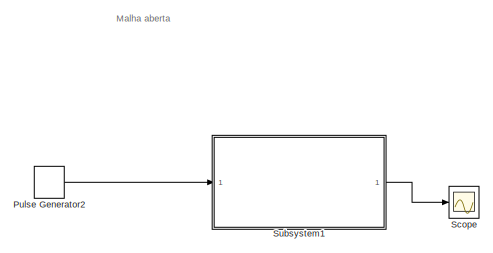
[diagram: root canvas - part 1/6, top left region]
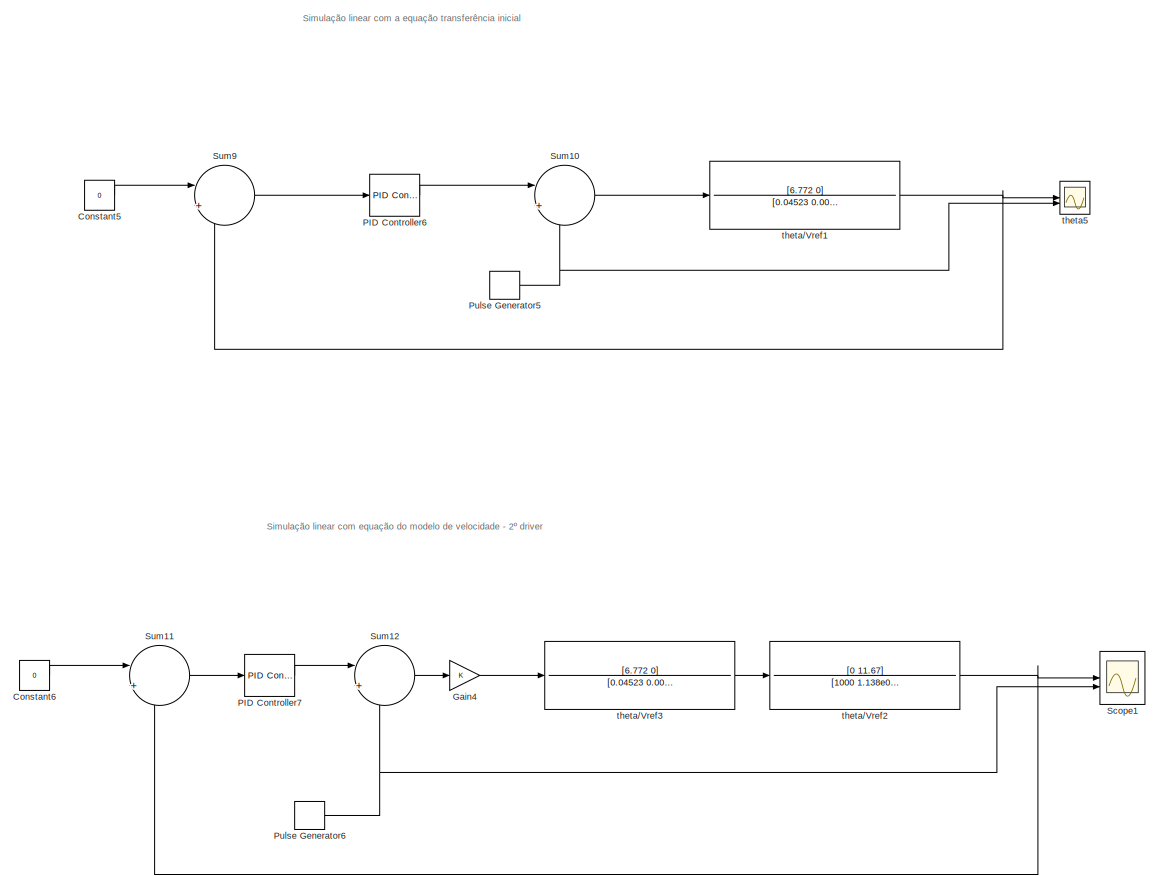
[diagram: root canvas - part 2/6, top center region]
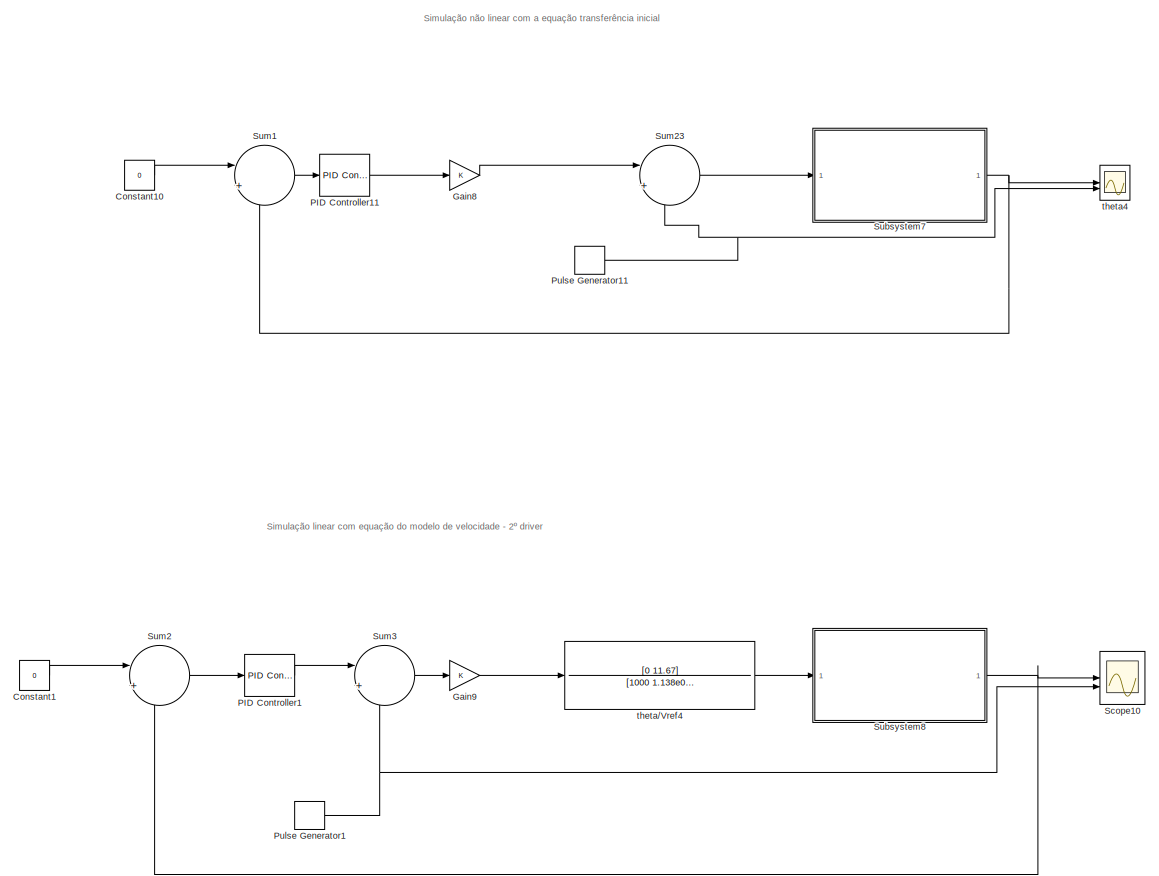
[diagram: root canvas - part 3/6, top right region]
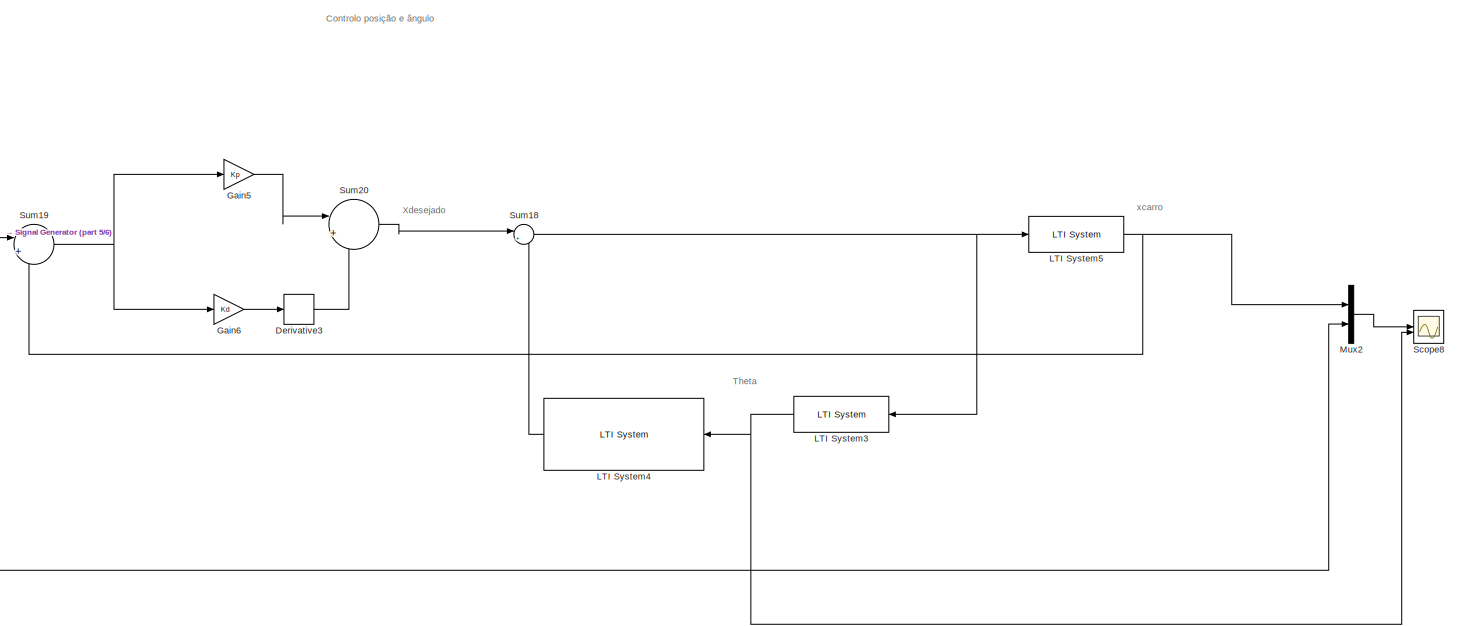
[diagram: root canvas - part 4/6, middle right region]
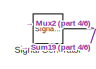
[diagram: root canvas - part 5/6, central region]
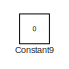
[diagram: root canvas - part 6/6, bottom left region]
MODEL slx_164c62c2c258
KIND model
CONFIG AbsTol = 1e-3
CONFIG EnableMultiTasking = off
CONFIG FixedStep = 0.001
CONFIG MaxStep = 0.001
CONFIG MinStep = auto
CONFIG RelTol = 1e-3
CONFIG SampleTimeConstraint = Unconstrained
CONFIG SolverName = ode14x
CONFIG StartTime = 0.0
CONFIG StopTime = 100
BLOCK [Constant] Constant1
  Commented = on
  Value = 0
BLOCK [Constant] Constant10
  Value = 0
BLOCK [Constant] Constant5
  Commented = on
  Value = 0
BLOCK [Constant] Constant6
  Commented = on
  Value = 0
BLOCK [Constant] Constant9
  Commented = on
  Value = 0
BLOCK [Derivative] Derivative3
BLOCK [Gain] Gain4
  Commented = on
BLOCK [Gain] Gain5
  Gain = Kp
BLOCK [Gain] Gain6
  Gain = Kd
BLOCK [Gain] Gain8
BLOCK [Gain] Gain9
  Commented = on
BLOCK [Reference] LTI System3  REF=cstblocks/LTI System
  NameLocation = top
  SourceBlock = cstblocks/LTI System
  SourceType = LTI Block
BLOCK [Reference] LTI System4  REF=cstblocks/LTI System
  NameLocation = top
  SourceBlock = cstblocks/LTI System
  SourceType = LTI Block
BLOCK [Reference] LTI System5  REF=cstblocks/LTI System
  SourceBlock = cstblocks/LTI System
  SourceType = LTI Block
BLOCK [Mux] Mux2
  DisplayOption = bar
  Inputs = 2
BLOCK [Reference] PID Controller1  REF=slpidlib/PID Controller
  Commented = on
  LibrarySourceBlock = simulink/Continuous/PID Controller
  SourceBlock = slpidlib/PID Controller
  SourceType = PID 1dof
BLOCK [Reference] PID Controller11  REF=slpidlib/PID Controller
  LibrarySourceBlock = simulink/Continuous/PID Controller
  SourceBlock = slpidlib/PID Controller
  SourceType = PID 1dof
BLOCK [Reference] PID Controller6  REF=slpidlib/PID Controller
  Commented = on
  LibrarySourceBlock = simulink/Continuous/PID Controller
  SourceBlock = slpidlib/PID Controller
  SourceType = PID 1dof
BLOCK [Reference] PID Controller7  REF=slpidlib/PID Controller
  Commented = on
  LibrarySourceBlock = simulink/Continuous/PID Controller
  SourceBlock = slpidlib/PID Controller
  SourceType = PID 1dof
BLOCK [DiscretePulseGenerator] Pulse Generator1
  Amplitude = 0.1
  Commented = on
  Period = 10
  PulseType = Time based
BLOCK [DiscretePulseGenerator] Pulse Generator11
  Amplitude = 0.1
  Period = 10
  PulseType = Time based
BLOCK [DiscretePulseGenerator] Pulse Generator2
  Amplitude = 0.1
  Commented = on
  Period = 20
  PulseType = Time based
BLOCK [DiscretePulseGenerator] Pulse Generator5
  Amplitude = 0.1
  Commented = on
  PulseType = Time based
BLOCK [DiscretePulseGenerator] Pulse Generator6
  Amplitude = 0.1
  Commented = on
  Period = 10
  PulseType = Time based
BLOCK [Scope] Scope
  Commented = on
  Floating = off
  NumInputPorts = 1
  ScopeSpecificationString = Simulink.scopes.TimeScopeBlockCfg('CurrentConfiguration', extmgr.ConfigurationSet(extmgr.Configuration('Core','General UI',true),extmgr.Configuration('Core','Source UI',true),extmgr.Configuration('Sources','WiredSimulink',true,'DataLoggingVariableName','ScopeData1'),extmgr.Configuration('Visuals','Time Domain',true,'SerializedDisplays',{struct('MinYLimReal','-0.71976','MaxYLimReal','6.47786','YLab...<+1398ch>
BLOCK [Scope] Scope1
  Commented = on
  Floating = off
  NumInputPorts = 2
  ScopeSpecificationString = Simulink.scopes.TimeScopeBlockCfg('CurrentConfiguration', extmgr.ConfigurationSet(extmgr.Configuration('Core','General UI',true),extmgr.Configuration('Core','Source UI',true),extmgr.Configuration('Sources','WiredSimulink',true,'DataLoggingVariableName','ScopeData2'),extmgr.Configuration('Visuals','Time Domain',true,'SerializedDisplays',{struct('MinYLimReal','-0.00018','MaxYLimReal','0.00028','YLab...<+2021ch>
BLOCK [Scope] Scope10
  Commented = on
  Floating = off
  NumInputPorts = 2
  ScopeSpecificationString = Simulink.scopes.TimeScopeBlockCfg('CurrentConfiguration', extmgr.ConfigurationSet(extmgr.Configuration('Core','General UI',true),extmgr.Configuration('Core','Source UI',true),extmgr.Configuration('Sources','WiredSimulink',true,'DataLoggingVariableName','ScopeData2'),extmgr.Configuration('Visuals','Time Domain',true,'SerializedDisplays',{struct('MinYLimReal','-0.00018','MaxYLimReal','0.00029','YLab...<+2020ch>
BLOCK [Scope] Scope8
  Floating = off
  NumInputPorts = 2
  ScopeSpecificationString = Simulink.scopes.TimeScopeBlockCfg('CurrentConfiguration', extmgr.ConfigurationSet(extmgr.Configuration('Core','General UI',true),extmgr.Configuration('Core','Source UI',true),extmgr.Configuration('Sources','WiredSimulink',true,'DataLoggingVariableName','ScopeData1'),extmgr.Configuration('Visuals','Time Domain',true,'SerializedDisplays',{struct('MinYLimReal','-0.01263','MaxYLimReal','0.01263','YLab...<+2125ch>
BLOCK [SignalGenerator] Signal Generator
  Amplitude = 0.01
  Frequency = 0.04
  WaveForm = square
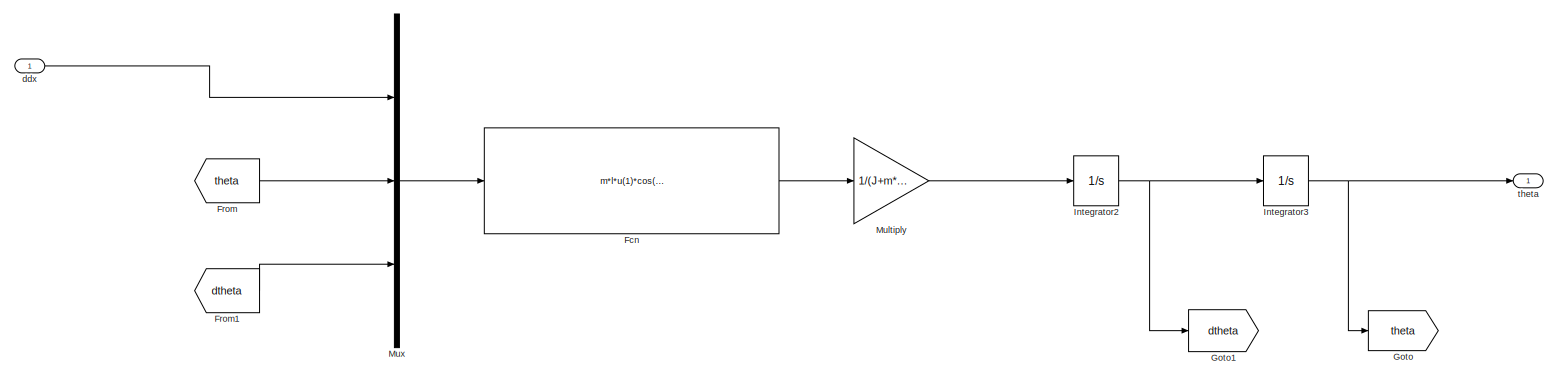
[diagram: Subsystem1 - part 1/1, most of the canvas]
BLOCK [SubSystem] Subsystem1
  Commented = on
BLOCK [Fcn] Subsystem1/Fcn
  Expr = m*l*u(1)*cos(u(2)) + m*l*g*sin(u(2)) - c*u(3)
BLOCK [From] Subsystem1/From
  GotoTag = theta
BLOCK [From] Subsystem1/From1
  GotoTag = dtheta
BLOCK [Goto] Subsystem1/Goto
  GotoTag = theta
BLOCK [Goto] Subsystem1/Goto1
  GotoTag = dtheta
BLOCK [Integrator] Subsystem1/Integrator2
BLOCK [Integrator] Subsystem1/Integrator3
BLOCK [Gain] Subsystem1/Multiply
  Gain = 1/(J+m*l^2)
BLOCK [Mux] Subsystem1/Mux
  DisplayOption = bar
  Inputs = 3
BLOCK [Inport] Subsystem1/ddx
BLOCK [Outport] Subsystem1/theta
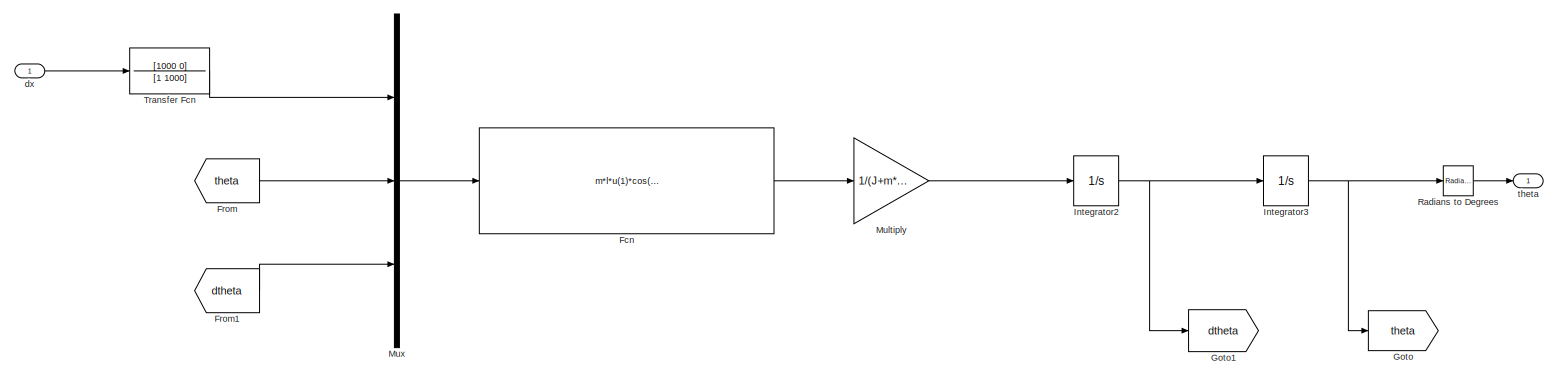
[diagram: Subsystem7 - part 1/1, most of the canvas]
BLOCK [SubSystem] Subsystem7
BLOCK [Fcn] Subsystem7/Fcn
  Expr = m*l*u(1)*cos(u(2)) + m*l*g*sin(u(2)) - c*u(3)
BLOCK [From] Subsystem7/From
  GotoTag = theta
BLOCK [From] Subsystem7/From1
  GotoTag = dtheta
BLOCK [Goto] Subsystem7/Goto
  GotoTag = theta
BLOCK [Goto] Subsystem7/Goto1
  GotoTag = dtheta
BLOCK [Integrator] Subsystem7/Integrator2
BLOCK [Integrator] Subsystem7/Integrator3
BLOCK [Gain] Subsystem7/Multiply
  Gain = 1/(J+m*l^2)
BLOCK [Mux] Subsystem7/Mux
  DisplayOption = bar
  Inputs = 3
BLOCK [Reference] Subsystem7/Radians to Degrees  REF=simulink_extras/Transformations/Radians
to Degrees
  SourceBlock = simulink_extras/Transformations/Radians\nto Degrees
  SourceType = RadiansToDegrees
BLOCK [TransferFcn] Subsystem7/Transfer Fcn
  Denominator = [1 1000]
  Numerator = [1000 0]
BLOCK [Inport] Subsystem7/dx
BLOCK [Outport] Subsystem7/theta
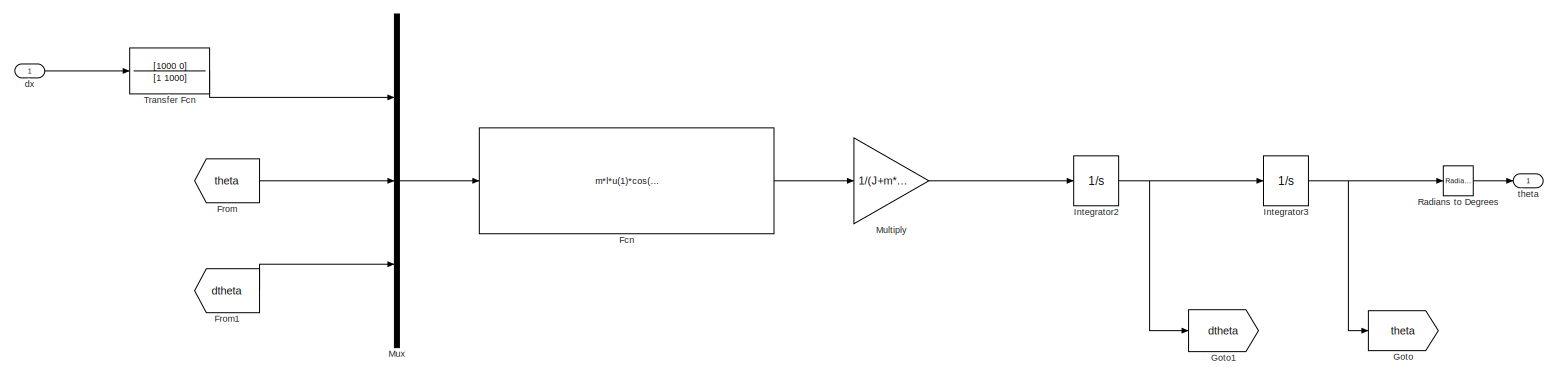
[diagram: Subsystem8 - part 1/1, most of the canvas]
BLOCK [SubSystem] Subsystem8
  Commented = on
BLOCK [Fcn] Subsystem8/Fcn
  Expr = m*l*u(1)*cos(u(2)) + m*l*g*sin(u(2)) - c*u(3)
BLOCK [From] Subsystem8/From
  GotoTag = theta
BLOCK [From] Subsystem8/From1
  GotoTag = dtheta
BLOCK [Goto] Subsystem8/Goto
  GotoTag = theta
BLOCK [Goto] Subsystem8/Goto1
  GotoTag = dtheta
BLOCK [Integrator] Subsystem8/Integrator2
BLOCK [Integrator] Subsystem8/Integrator3
BLOCK [Gain] Subsystem8/Multiply
  Gain = 1/(J+m*l^2)
BLOCK [Mux] Subsystem8/Mux
  DisplayOption = bar
  Inputs = 3
BLOCK [Reference] Subsystem8/Radians to Degrees  REF=simulink_extras/Transformations/Radians
to Degrees
  SourceBlock = simulink_extras/Transformations/Radians\nto Degrees
  SourceType = RadiansToDegrees
BLOCK [TransferFcn] Subsystem8/Transfer Fcn
  Denominator = [1 1000]
  Numerator = [1000 0]
BLOCK [Inport] Subsystem8/dx
BLOCK [Outport] Subsystem8/theta
BLOCK [Sum] Sum1
  Inputs = |+-
BLOCK [Sum] Sum10
  Commented = on
  Inputs = |++
BLOCK [Sum] Sum11
  Commented = on
  Inputs = |+-
BLOCK [Sum] Sum12
  Commented = on
  Inputs = |++
BLOCK [Sum] Sum18
  Inputs = |+-
BLOCK [Sum] Sum19
  Inputs = |+-
BLOCK [Sum] Sum2
  Commented = on
  Inputs = |+-
BLOCK [Sum] Sum20
  Inputs = |++
BLOCK [Sum] Sum23
  Inputs = |++
BLOCK [Sum] Sum3
  Commented = on
  Inputs = |++
BLOCK [Sum] Sum9
  Commented = on
  Inputs = |+-
BLOCK [TransferFcn] theta//Vref1
  Commented = on
  Denominator = [0.04523 0.008308 -1.158]
  Numerator = [6.772 0]
BLOCK [TransferFcn] theta//Vref2
  Commented = on
  Denominator = [1000 1.138e04 126.2]
  Numerator = [0 11.67]
BLOCK [TransferFcn] theta//Vref3
  Commented = on
  Denominator = [0.04523 0.008308 -1.158]
  Numerator = [6.772 0]
BLOCK [TransferFcn] theta//Vref4
  Commented = on
  Denominator = [1000 1.138e04 126.2]
  Numerator = [0 11.67]
BLOCK [Scope] theta4
  Floating = off
  NumInputPorts = 2
  ScopeSpecificationString = Simulink.scopes.TimeScopeBlockCfg('CurrentConfiguration', extmgr.ConfigurationSet(extmgr.Configuration('Core','General UI',true),extmgr.Configuration('Core','Source UI',true),extmgr.Configuration('Sources','WiredSimulink',true,'DataLoggingVariableName','ScopeData1'),extmgr.Configuration('Visuals','Time Domain',true,'SerializedDisplays',{struct('MinYLimReal','-0.01995','MaxYLimReal','0.06071','YLab...<+2074ch>
BLOCK [Scope] theta5
  Commented = on
  Floating = off
  NumInputPorts = 2
  ScopeSpecificationString = Simulink.scopes.TimeScopeBlockCfg('CurrentConfiguration', extmgr.ConfigurationSet(extmgr.Configuration('Core','General UI',true),extmgr.Configuration('Core','Source UI',true),extmgr.Configuration('Sources','WiredSimulink',true,'DataLoggingVariableName','ScopeData1'),extmgr.Configuration('Visuals','Time Domain',true,'SerializedDisplays',{struct('MinYLimReal','-0.0152','MaxYLimReal','0.1128','YLabel...<+1419ch>
ANNOTATION (root): Controlo posição e ângulo
ANNOTATION (root): Malha aberta
ANNOTATION (root): Simulação linear com a equação transferência inicial
ANNOTATION (root): Simulação linear com equação do modelo de velocidade - 2º driver
ANNOTATION (root): Simulação não linear com a equação transferência inicial
ANNOTATION (root): Theta
ANNOTATION (root): Xdesejado
ANNOTATION (root): xcarro
LINE Constant10:1 -> Sum1:1
LINE Constant1:1 -> Sum2:1
LINE Constant5:1 -> Sum9:1
LINE Constant6:1 -> Sum11:1
LINE Derivative3:1 -> Sum20:2
LINE Gain4:1 -> theta//Vref3:1
LINE Gain5:1 -> Sum20:1
LINE Gain6:1 -> Derivative3:1
LINE Gain8:1 -> Sum23:1
LINE Gain9:1 -> theta//Vref4:1
NET LTI System3:1 -> LTI System4:1, Scope8:2
LINE LTI System4:1 -> Sum18:2
NET LTI System5:1 -> Mux2:1, Sum19:2
LINE Mux2:1 -> Scope8:1
LINE PID Controller11:1 -> Gain8:1
LINE PID Controller1:1 -> Sum3:1
LINE PID Controller6:1 -> Sum10:1
LINE PID Controller7:1 -> Sum12:1
NET Pulse Generator11:1 -> Sum23:2, theta4:2
NET Pulse Generator1:1 -> Scope10:2, Sum3:2
LINE Pulse Generator2:1 -> Subsystem1:1
NET Pulse Generator5:1 -> Sum10:2, theta5:2
NET Pulse Generator6:1 -> Scope1:2, Sum12:2
NET Signal Generator:1 -> Mux2:2, Sum19:1
LINE Subsystem1/Fcn:1 -> Subsystem1/Multiply:1
LINE Subsystem1/From1:1 -> Subsystem1/Mux:3
LINE Subsystem1/From:1 -> Subsystem1/Mux:2
NET Subsystem1/Integrator2:1 -> Subsystem1/Goto1:1, Subsystem1/Integrator3:1
NET Subsystem1/Integrator3:1 -> Subsystem1/Goto:1, Subsystem1/theta:1
LINE Subsystem1/Multiply:1 -> Subsystem1/Integrator2:1
LINE Subsystem1/Mux:1 -> Subsystem1/Fcn:1
LINE Subsystem1/ddx:1 -> Subsystem1/Mux:1
LINE Subsystem1:1 -> Scope:1
LINE Subsystem7/Fcn:1 -> Subsystem7/Multiply:1
LINE Subsystem7/From1:1 -> Subsystem7/Mux:3
LINE Subsystem7/From:1 -> Subsystem7/Mux:2
NET Subsystem7/Integrator2:1 -> Subsystem7/Goto1:1, Subsystem7/Integrator3:1
NET Subsystem7/Integrator3:1 -> Subsystem7/Goto:1, Subsystem7/Radians to Degrees:1
LINE Subsystem7/Multiply:1 -> Subsystem7/Integrator2:1
LINE Subsystem7/Mux:1 -> Subsystem7/Fcn:1
LINE Subsystem7/Radians to Degrees:1 -> Subsystem7/theta:1
LINE Subsystem7/Transfer Fcn:1 -> Subsystem7/Mux:1
LINE Subsystem7/dx:1 -> Subsystem7/Transfer Fcn:1
NET Subsystem7:1 -> Sum1:2, theta4:1
LINE Subsystem8/Fcn:1 -> Subsystem8/Multiply:1
LINE Subsystem8/From1:1 -> Subsystem8/Mux:3
LINE Subsystem8/From:1 -> Subsystem8/Mux:2
NET Subsystem8/Integrator2:1 -> Subsystem8/Goto1:1, Subsystem8/Integrator3:1
NET Subsystem8/Integrator3:1 -> Subsystem8/Goto:1, Subsystem8/Radians to Degrees:1
LINE Subsystem8/Multiply:1 -> Subsystem8/Integrator2:1
LINE Subsystem8/Mux:1 -> Subsystem8/Fcn:1
LINE Subsystem8/Radians to Degrees:1 -> Subsystem8/theta:1
LINE Subsystem8/Transfer Fcn:1 -> Subsystem8/Mux:1
LINE Subsystem8/dx:1 -> Subsystem8/Transfer Fcn:1
NET Subsystem8:1 -> Scope10:1, Sum2:2
LINE Sum10:1 -> theta//Vref1:1
LINE Sum11:1 -> PID Controller7:1
LINE Sum12:1 -> Gain4:1
NET Sum18:1 -> LTI System3:1, LTI System5:1
NET Sum19:1 -> Gain5:1, Gain6:1
LINE Sum1:1 -> PID Controller11:1
LINE Sum20:1 -> Sum18:1
LINE Sum23:1 -> Subsystem7:1
LINE Sum2:1 -> PID Controller1:1
LINE Sum3:1 -> Gain9:1
LINE Sum9:1 -> PID Controller6:1
NET theta//Vref1:1 -> Sum9:2, theta5:1
NET theta//Vref2:1 -> Scope1:1, Sum11:2
LINE theta//Vref3:1 -> theta//Vref2:1
LINE theta//Vref4:1 -> Subsystem8:1
note: NET lines group one-source signal fan-out (src -> all destinations, sorted); 1:1 wires keep LINE
